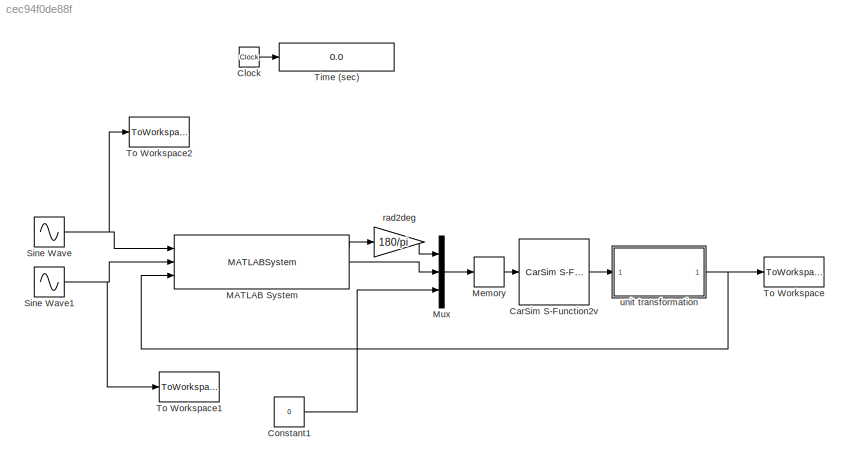
MODEL slx_cec94f0de88f
KIND model
CONFIG AbsTol = 1e-6
CONFIG EnableMultiTasking = off
CONFIG FixedStep = 0.002
CONFIG MaxStep = auto
CONFIG MinStep = auto
CONFIG PreLoadFcn = addpath <path>
CONFIG RelTol = 1e-3
CONFIG SampleTimeConstraint = Unconstrained
CONFIG Solver = ode45
CONFIG SolverName = ode45
CONFIG StartTime = 0
CONFIG StopTime = 200
BLOCK [Reference] CarSim S-Function2v  REF=Solver_SF/CarSim S-Function2v
  AttributesFormatString = Vehicle Code: %<VehicleCode>
  Ports = [1, 1]
  Priority = 1
  SourceBlock = Solver_SF/CarSim S-Function2v
  SourceType = Vehicle math model library
BLOCK [Clock] Clock
BLOCK [Constant] Constant1
  Value = 0
BLOCK [MATLABSystem] MATLAB System
  MaskDisplay = disp('car_inputs');\nport_label('input',1,'delta_f');\nport_label('input',2,'F_w');\nport_label('input',3,'rawdata');\nport_label('output',1,'steering_angle');\nport_label('output',2,'throttle');\nport_label('output',3,'braking');
  MaskType = car_inputs
  Ports = [3, 3]
  SimulateUsing = Interpreted execution
  System = car_inputs
  brake_gain = 1
  inv_engine_map_file = inverse_engine_map.mat
  steer_ratio = 16.5
  trans_eff = 0.79
  wheel_rad = 0.392
BLOCK [Memory] Memory
  X0 = [0;0;0]
BLOCK [Mux] Mux
  DisplayOption = bar
  Inputs = 3
  Ports = [3, 1]
BLOCK [Sin] Sine Wave
  Amplitude = 0
  Frequency = 0.05
  Ports = [0, 1]
  SampleTime = 0
BLOCK [Sin] Sine Wave1
  Amplitude = 300
  Bias = 500
  Ports = [0, 1]
  SampleTime = 0
BLOCK [Display] Time (sec)
  Decimation = 100
  Format = bank
  Ports = [1]
BLOCK [ToWorkspace] To Workspace
  FixptAsFi = on
  MaxDataPoints = inf
  Ports = [1]
  SampleTime = -1
  Save2DSignal = 3-D array (concatenate along third dimension)
  SaveFormat = Timeseries
  VariableName = rawdata
BLOCK [ToWorkspace] To Workspace1
  FixptAsFi = on
  MaxDataPoints = inf
  Ports = [1]
  SampleTime = -1
  Save2DSignal = 3-D array (concatenate along third dimension)
  SaveFormat = Timeseries
  VariableName = F_w
BLOCK [ToWorkspace] To Workspace2
  FixptAsFi = on
  MaxDataPoints = inf
  Ports = [1]
  SampleTime = -1
  Save2DSignal = 3-D array (concatenate along third dimension)
  SaveFormat = Timeseries
  VariableName = delta_f
BLOCK [Gain] rad2deg
  Gain = 180/pi
  OutDataTypeStr = Inherit: Inherit via internal rule
  ParamDataTypeStr = Inherit: Inherit via internal rule
  SaturateOnIntegerOverflow = off
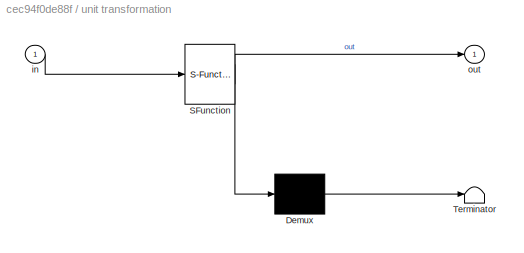
BLOCK [SubSystem] unit transformation 
  ErrorFcn = Stateflow.Translate.translate
  PermitHierarchicalResolution = ExplicitOnly
  Ports = [1, 1]
  RequestExecContextInheritance = off
  SFBlockType = MATLAB Function
  TreatAsAtomicUnit = on
  Variant = off
BLOCK [Demux] unit transformation / Demux 
  Outputs = 1
  Ports = [1, 1]
BLOCK [S-Function] unit transformation / SFunction 
  EnableBusSupport = on
  FunctionName = sf_sfun
  PortCounts = [1 2]
  Ports = [1, 2]
  SFcnIsStateOwnerBlock = off
  SFunctionDeploymentMode = off
  Tag = Stateflow S-Function carsim_sysid 1
BLOCK [Terminator] unit transformation / Terminator 
BLOCK [Inport] unit transformation /in
  IconDisplay = Port number
BLOCK [Outport] unit transformation /out
  IconDisplay = Port number
LINE CarSim S-Function2v:1 -> unit transformation :1
LINE Clock:1 -> Time (sec):1
LINE Constant1:1 -> Mux:3
LINE MATLAB System:1 -> rad2deg:1
LINE MATLAB System:2 -> Mux:2
LINE Memory:1 -> CarSim S-Function2v:1
LINE Mux:1 -> Memory:1
NET Sine Wave1:1 -> MATLAB System:2, To Workspace1:1
NET Sine Wave:1 -> MATLAB System:1, To Workspace2:1
LINE rad2deg:1 -> Mux:1
NET unit transformation :1 -> MATLAB System:3, To Workspace:1
note: NET lines group one-source signal fan-out (src -> all destinations, sorted); 1:1 wires keep LINE
CHART unit transformation
 states=1 transitions=1
  STATE_LABEL 'eML_blk_kernel()'
  STATE_LABEL 'SCRIPT:\nfunction out  = fcn(in)\n    out.lat = in(1);\n    out.long = in(2);\n    out.el = 0;\n    out.Yaw = deg2rad(in(3));\n    out.YawRate = deg2rad(in(4));\n    out.Vx = in(5)/3.6;\n    out.Vy = in(6)/3.6;\n    out.x_CG = in(7)/1000;\n    out.y_CG = in(8)/1000;\n    out.steer_L1 = deg2rad(in(9));\n    out.steer_R1 = deg2rad(in(10));\n    out.Alpha_L1 = deg2rad(in(11));\n    out.Alpha_R1 = deg2rad(in(12));\n...<+552ch>'
note: 1 file-system path scrubbed to <path> (not preserved elsewhere — flat text is the only slx artifact)
